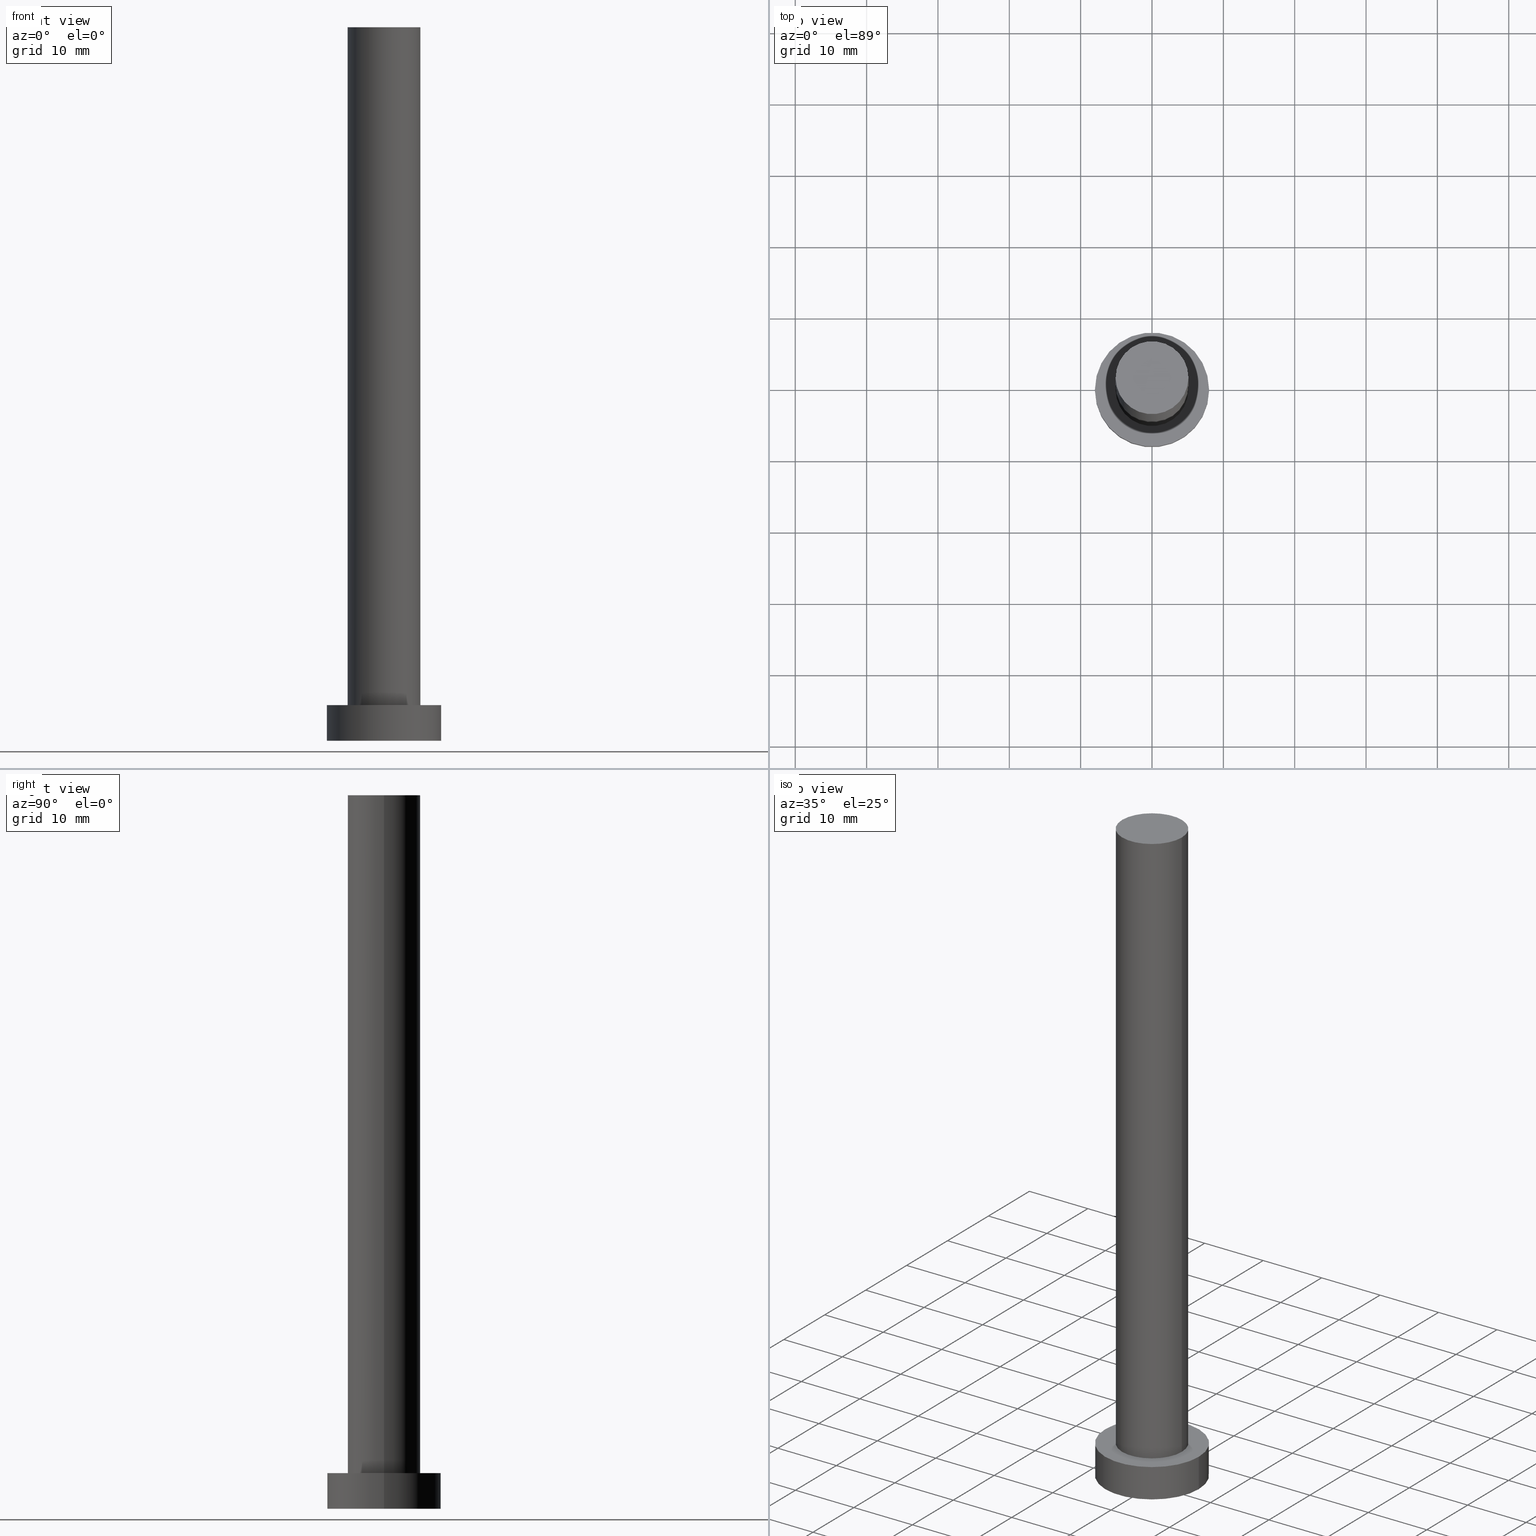
[diagram: canonical four-view strip — front | top / right | iso, engineering-drawing reading convention]
A machine part, canonical four-view strip (front | top / right | iso — engineering-drawing reading convention). The complete STEP part file that produces these views, byte-faithful:
ISO-10303-21;
HEADER;
FILE_DESCRIPTION (( 'STEP AP203' ),
    '1' );
FILE_NAME ('03d8.STEP',
    '2023-02-13T13:16:33',
    ( '' ),
    ( '' ),
    'SwSTEP 2.0',
    'SolidWorks 2019',
    '' );
FILE_SCHEMA (( 'CONFIG_CONTROL_DESIGN' ));
ENDSEC;

DATA;
#1 = DIRECTION ( 'NONE',  ( 0.000000000000000000, 0.000000000000000000, 1.000000000000000000 ) ) ;
#2 = ORIENTED_EDGE ( 'NONE', *, *, #214, .T. ) ;
#3 = EDGE_CURVE ( 'NONE', #112, #210, #176, .T. ) ;
#4 = PERSON_AND_ORGANIZATION ( #174, #10 ) ;
#5 = PERSON_AND_ORGANIZATION ( #174, #10 ) ;
#6 = AXIS2_PLACEMENT_3D ( 'NONE', #122, #121, #216 ) ;
#7 = PERSON_AND_ORGANIZATION_ROLE ( 'design_supplier' ) ;
#8 = VERTEX_POINT ( 'NONE', #230 ) ;
#9 = DIRECTION ( 'NONE',  ( 1.000000000000000000, 0.000000000000000000, 0.000000000000000000 ) ) ;
#10 = ORGANIZATION ( 'NEUR�EN�', 'NEUR�EN�', '' ) ;
#11 = CARTESIAN_POINT ( 'NONE',  ( 0.000000000000000000, 0.000000000000000000, 5.000000000000000000 ) ) ;
#12 = DIRECTION ( 'NONE',  ( -1.000000000000000000, 0.000000000000000000, 0.000000000000000000 ) ) ;
#13 = AXIS2_PLACEMENT_3D ( 'NONE', #20, #198, #239 ) ;
#14 = VECTOR ( 'NONE', #78, 1000.000000000000000 ) ;
#15 = DIRECTION ( 'NONE',  ( -0.000000000000000000, -0.000000000000000000, -1.000000000000000000 ) ) ;
#16 = ADVANCED_FACE ( 'NONE', ( #192 ), #173, .T. ) ;
#17 = CARTESIAN_POINT ( 'NONE',  ( 0.000000000000000000, 0.000000000000000000, 5.000000000000000000 ) ) ;
#18 = PLANE ( 'NONE',  #235 ) ;
#19 = CC_DESIGN_DATE_AND_TIME_ASSIGNMENT ( #185, #148, ( #101 ) ) ;
#20 = CARTESIAN_POINT ( 'NONE',  ( 0.000000000000000000, 0.000000000000000000, 5.000000000000000000 ) ) ;
#21 = VECTOR ( 'NONE', #15, 1000.000000000000000 ) ;
#22 = DIRECTION ( 'NONE',  ( -0.000000000000000000, -0.000000000000000000, -1.000000000000000000 ) ) ;
#23 = PERSON_AND_ORGANIZATION ( #174, #10 ) ;
#24 = ORIENTED_EDGE ( 'NONE', *, *, #105, .F. ) ;
#25 = AXIS2_PLACEMENT_3D ( 'NONE', #11, #249, #94 ) ;
#26 = CARTESIAN_POINT ( 'NONE',  ( 0.000000000000000000, 0.000000000000000000, 0.000000000000000000 ) ) ;
#27 = PERSON_AND_ORGANIZATION_ROLE ( 'creator' ) ;
#28 = ORIENTED_EDGE ( 'NONE', *, *, #73, .F. ) ;
#29 = DIRECTION ( 'NONE',  ( 1.000000000000000000, 0.000000000000000000, 0.000000000000000000 ) ) ;
#30 = AXIS2_PLACEMENT_3D ( 'NONE', #204, #22, #236 ) ;
#31 = VERTEX_POINT ( 'NONE', #193 ) ;
#32 = ORIENTED_EDGE ( 'NONE', *, *, #75, .T. ) ;
#33 = ORIENTED_EDGE ( 'NONE', *, *, #113, .F. ) ;
#34 = ADVANCED_BREP_SHAPE_REPRESENTATION ( '03d8', ( #143, #145 ), #126 ) ;
#35 = APPROVAL ( #168, 'NEUR�EN�' ) ;
#36 = EDGE_LOOP ( 'NONE', ( #248, #166, #247, #28 ) ) ;
#37 = EDGE_CURVE ( 'NONE', #171, #8, #59, .T. ) ;
#38 = DIRECTION ( 'NONE',  ( 0.000000000000000000, 0.000000000000000000, 1.000000000000000000 ) ) ;
#39 = LOCAL_TIME ( 14, 16, 33.00000000000000000, #169 ) ;
#40 = CARTESIAN_POINT ( 'NONE',  ( 8.000000000000000000, 9.797174393178825657E-16, 5.000000000000000000 ) ) ;
#41 = CYLINDRICAL_SURFACE ( 'NONE', #6, 5.099999999999999645 ) ;
#42 = CARTESIAN_POINT ( 'NONE',  ( -5.099999999999999645, 0.000000000000000000, 100.0000000000000000 ) ) ;
#43 = DIRECTION ( 'NONE',  ( 0.000000000000000000, 0.000000000000000000, 1.000000000000000000 ) ) ;
#44 =( NAMED_UNIT ( * ) PLANE_ANGLE_UNIT ( ) SI_UNIT ( $, .RADIAN. ) );
#45 = PERSON_AND_ORGANIZATION ( #174, #10 ) ;
#46 = APPLICATION_PROTOCOL_DEFINITION ( 'international standard', 'config_control_design', 1994, #220 ) ;
#47 = ORIENTED_EDGE ( 'NONE', *, *, #73, .T. ) ;
#48 = CC_DESIGN_PERSON_AND_ORGANIZATION_ASSIGNMENT ( #130, #106, ( #194 ) ) ;
#49 = APPROVAL_DATE_TIME ( #207, #95 ) ;
#50 = ORIENTED_EDGE ( 'NONE', *, *, #60, .T. ) ;
#51 = AXIS2_PLACEMENT_3D ( 'NONE', #134, #117, #12 ) ;
#52 = ORIENTED_EDGE ( 'NONE', *, *, #180, .F. ) ;
#53 = AXIS2_PLACEMENT_3D ( 'NONE', #234, #162, #119 ) ;
#54 = CARTESIAN_POINT ( 'NONE',  ( 5.099999999999999645, 6.245698675651500839E-16, 100.0000000000000000 ) ) ;
#55 = CARTESIAN_POINT ( 'NONE',  ( 0.000000000000000000, 0.000000000000000000, 0.000000000000000000 ) ) ;
#56 = UNCERTAINTY_MEASURE_WITH_UNIT (LENGTH_MEASURE( 1.000000000000000082E-05 ), #103, 'distance_accuracy_value', 'NONE');
#57 = FACE_OUTER_BOUND ( 'NONE', #228, .T. ) ;
#58 = DIRECTION ( 'NONE',  ( 1.000000000000000000, 0.000000000000000000, -0.000000000000000000 ) ) ;
#59 = CIRCLE ( 'NONE', #25, 5.099999999999999645 ) ;
#60 = EDGE_CURVE ( 'NONE', #243, #31, #156, .T. ) ;
#61 = COORDINATED_UNIVERSAL_TIME_OFFSET ( 1, 0, .AHEAD. ) ;
#62 = CALENDAR_DATE ( 2023, 13, 2 ) ;
#63 = VERTEX_POINT ( 'NONE', #99 ) ;
#64 = DATE_TIME_ROLE ( 'classification_date' ) ;
#65 = LOCAL_TIME ( 14, 16, 33.00000000000000000, #61 ) ;
#66 = ORIENTED_EDGE ( 'NONE', *, *, #37, .F. ) ;
#67 = CIRCLE ( 'NONE', #200, 5.099999999999999645 ) ;
#68 = CALENDAR_DATE ( 2023, 13, 2 ) ;
#69 = ORIENTED_EDGE ( 'NONE', *, *, #105, .T. ) ;
#70 = CARTESIAN_POINT ( 'NONE',  ( 0.000000000000000000, 0.000000000000000000, 5.000000000000000000 ) ) ;
#71 = DESIGN_CONTEXT ( 'detailed design', #96, 'design' ) ;
#72 = AXIS2_PLACEMENT_3D ( 'NONE', #55, #178, #124 ) ;
#73 = EDGE_CURVE ( 'NONE', #210, #8, #97, .T. ) ;
#74 = APPROVAL_DATE_TIME ( #152, #219 ) ;
#75 = EDGE_CURVE ( 'NONE', #8, #171, #217, .T. ) ;
#76 = LOCAL_TIME ( 14, 16, 33.00000000000000000, #241 ) ;
#77 = CIRCLE ( 'NONE', #92, 8.000000000000000000 ) ;
#78 = DIRECTION ( 'NONE',  ( -0.000000000000000000, -0.000000000000000000, -1.000000000000000000 ) ) ;
#79 = FACE_BOUND ( 'NONE', #170, .T. ) ;
#80 = DIRECTION ( 'NONE',  ( -0.000000000000000000, -0.000000000000000000, -1.000000000000000000 ) ) ;
#81 = CC_DESIGN_SECURITY_CLASSIFICATION ( #138, ( #194 ) ) ;
#82 = DIRECTION ( 'NONE',  ( -1.000000000000000000, 0.000000000000000000, 0.000000000000000000 ) ) ;
#83 = FACE_OUTER_BOUND ( 'NONE', #90, .T. ) ;
#84 = EDGE_CURVE ( 'NONE', #210, #112, #67, .T. ) ;
#85 = DIRECTION ( 'NONE',  ( -0.000000000000000000, -0.000000000000000000, -1.000000000000000000 ) ) ;
#86 = LOCAL_TIME ( 14, 16, 33.00000000000000000, #211 ) ;
#87 = PERSON_AND_ORGANIZATION_ROLE ( 'classification_officer' ) ;
#88 = ORIENTED_EDGE ( 'NONE', *, *, #84, .F. ) ;
#89 = CALENDAR_DATE ( 2023, 13, 2 ) ;
#90 = EDGE_LOOP ( 'NONE', ( #224, #129 ) ) ;
#91 = CIRCLE ( 'NONE', #132, 8.000000000000000000 ) ;
#92 = AXIS2_PLACEMENT_3D ( 'NONE', #17, #43, #218 ) ;
#93 = ORIENTED_EDGE ( 'NONE', *, *, #201, .T. ) ;
#94 = DIRECTION ( 'NONE',  ( 1.000000000000000000, 0.000000000000000000, 0.000000000000000000 ) ) ;
#95 = APPROVAL ( #109, 'NEUR�EN�' ) ;
#96 = APPLICATION_CONTEXT ( 'configuration controlled 3d designs of mechanical parts and assemblies' ) ;
#97 = LINE ( 'NONE', #177, #14 ) ;
#98 = AXIS2_PLACEMENT_3D ( 'NONE', #164, #158, #82 ) ;
#99 = CARTESIAN_POINT ( 'NONE',  ( 8.000000000000000000, 9.797174393178825657E-16, 0.000000000000000000 ) ) ;
#100 = FACE_OUTER_BOUND ( 'NONE', #153, .T. ) ;
#101 = PRODUCT_DEFINITION ( 'NEZN�M�', '', #194, #71 ) ;
#102 = CYLINDRICAL_SURFACE ( 'NONE', #98, 5.099999999999999645 ) ;
#103 =( LENGTH_UNIT ( ) NAMED_UNIT ( * ) SI_UNIT ( .MILLI., .METRE. ) );
#104 = LINE ( 'NONE', #54, #199 ) ;
#105 = EDGE_CURVE ( 'NONE', #243, #189, #77, .T. ) ;
#106 = PERSON_AND_ORGANIZATION_ROLE ( 'creator' ) ;
#107 = MECHANICAL_CONTEXT ( 'NONE', #220, 'mechanical' ) ;
#108 = EDGE_CURVE ( 'NONE', #189, #63, #253, .T. ) ;
#109 = APPROVAL_STATUS ( 'not_yet_approved' ) ;
#110 = ORIENTED_EDGE ( 'NONE', *, *, #60, .F. ) ;
#111 = LOCAL_TIME ( 14, 16, 33.00000000000000000, #183 ) ;
#112 = VERTEX_POINT ( 'NONE', #123 ) ;
#113 = EDGE_CURVE ( 'NONE', #31, #63, #118, .T. ) ;
#114 = PRODUCT_DEFINITION_SHAPE ( 'NONE', 'NONE',  #101 ) ;
#115 = DIRECTION ( 'NONE',  ( 1.000000000000000000, 0.000000000000000000, 0.000000000000000000 ) ) ;
#116 = ORIENTED_EDGE ( 'NONE', *, *, #214, .F. ) ;
#117 = DIRECTION ( 'NONE',  ( -0.000000000000000000, -0.000000000000000000, -1.000000000000000000 ) ) ;
#118 = CIRCLE ( 'NONE', #72, 8.000000000000000000 ) ;
#119 = DIRECTION ( 'NONE',  ( 1.000000000000000000, 0.000000000000000000, -0.000000000000000000 ) ) ;
#120 = CC_DESIGN_PERSON_AND_ORGANIZATION_ASSIGNMENT ( #186, #87, ( #138 ) ) ;
#121 = DIRECTION ( 'NONE',  ( -0.000000000000000000, -0.000000000000000000, -1.000000000000000000 ) ) ;
#122 = CARTESIAN_POINT ( 'NONE',  ( 0.000000000000000000, 0.000000000000000000, 100.0000000000000000 ) ) ;
#123 = CARTESIAN_POINT ( 'NONE',  ( 5.099999999999999645, 6.245698675651500839E-16, 100.0000000000000000 ) ) ;
#124 = DIRECTION ( 'NONE',  ( 1.000000000000000000, 0.000000000000000000, 0.000000000000000000 ) ) ;
#125 = DATE_AND_TIME ( #209, #76 ) ;
#126 =( GEOMETRIC_REPRESENTATION_CONTEXT ( 3 ) GLOBAL_UNCERTAINTY_ASSIGNED_CONTEXT ( ( #56 ) ) GLOBAL_UNIT_ASSIGNED_CONTEXT ( ( #103, #44, #223 ) ) REPRESENTATION_CONTEXT ( 'NONE', 'WORKASPACE' ) );
#127 = APPROVAL_DATE_TIME ( #125, #35 ) ;
#128 = PERSON_AND_ORGANIZATION_ROLE ( 'design_owner' ) ;
#129 = ORIENTED_EDGE ( 'NONE', *, *, #3, .T. ) ;
#130 = PERSON_AND_ORGANIZATION ( #174, #10 ) ;
#131 = ORIENTED_EDGE ( 'NONE', *, *, #113, .T. ) ;
#132 = AXIS2_PLACEMENT_3D ( 'NONE', #182, #140, #196 ) ;
#133 = EDGE_LOOP ( 'NONE', ( #116, #227, #93, #110 ) ) ;
#134 = CARTESIAN_POINT ( 'NONE',  ( 0.000000000000000000, 0.000000000000000000, 5.000000000000000000 ) ) ;
#135 = ORIENTED_EDGE ( 'NONE', *, *, #108, .F. ) ;
#136 = PERSON_AND_ORGANIZATION ( #174, #10 ) ;
#137 = PRODUCT_RELATED_PRODUCT_CATEGORY ( 'detail', '', ( #150 ) ) ;
#138 = SECURITY_CLASSIFICATION ( '', '', #165 ) ;
#139 = ADVANCED_FACE ( 'NONE', ( #100 ), #102, .T. ) ;
#140 = DIRECTION ( 'NONE',  ( 0.000000000000000000, 0.000000000000000000, 1.000000000000000000 ) ) ;
#141 = DIRECTION ( 'NONE',  ( 1.000000000000000000, 0.000000000000000000, 0.000000000000000000 ) ) ;
#142 = FACE_OUTER_BOUND ( 'NONE', #154, .T. ) ;
#143 = MANIFOLD_SOLID_BREP ( 'P�idat vysunut�m3', #151 ) ;
#144 = CARTESIAN_POINT ( 'NONE',  ( 0.000000000000000000, 0.000000000000000000, 0.000000000000000000 ) ) ;
#145 = AXIS2_PLACEMENT_3D ( 'NONE', #26, #1, #29 ) ;
#146 = ADVANCED_FACE ( 'NONE', ( #79, #142 ), #233, .T. ) ;
#147 = AXIS2_PLACEMENT_3D ( 'NONE', #155, #38, #115 ) ;
#148 = DATE_TIME_ROLE ( 'creation_date' ) ;
#149 = APPROVAL_ROLE ( '' ) ;
#150 = PRODUCT ( '03d8', '03d8', '', ( #107 ) ) ;
#151 = CLOSED_SHELL ( 'NONE', ( #184, #16, #157, #146, #237, #139, #215 ) ) ;
#152 = DATE_AND_TIME ( #68, #39 ) ;
#153 = EDGE_LOOP ( 'NONE', ( #52, #88, #47, #32 ) ) ;
#154 = EDGE_LOOP ( 'NONE', ( #69, #2 ) ) ;
#155 = CARTESIAN_POINT ( 'NONE',  ( 0.000000000000000000, 0.000000000000000000, 100.0000000000000000 ) ) ;
#156 = LINE ( 'NONE', #172, #21 ) ;
#157 = ADVANCED_FACE ( 'NONE', ( #181 ), #252, .T. ) ;
#158 = DIRECTION ( 'NONE',  ( -0.000000000000000000, -0.000000000000000000, -1.000000000000000000 ) ) ;
#159 = FACE_OUTER_BOUND ( 'NONE', #36, .T. ) ;
#160 = CC_DESIGN_APPROVAL ( #35, ( #101 ) ) ;
#161 = CC_DESIGN_PERSON_AND_ORGANIZATION_ASSIGNMENT ( #240, #27, ( #101 ) ) ;
#162 = DIRECTION ( 'NONE',  ( 0.000000000000000000, 0.000000000000000000, 1.000000000000000000 ) ) ;
#163 = DIRECTION ( 'NONE',  ( 0.000000000000000000, 0.000000000000000000, 1.000000000000000000 ) ) ;
#164 = CARTESIAN_POINT ( 'NONE',  ( 0.000000000000000000, 0.000000000000000000, 100.0000000000000000 ) ) ;
#165 = SECURITY_CLASSIFICATION_LEVEL ( 'unclassified' ) ;
#166 = ORIENTED_EDGE ( 'NONE', *, *, #180, .T. ) ;
#167 = CALENDAR_DATE ( 2023, 13, 2 ) ;
#168 = APPROVAL_STATUS ( 'not_yet_approved' ) ;
#169 = COORDINATED_UNIVERSAL_TIME_OFFSET ( 1, 0, .AHEAD. ) ;
#170 = EDGE_LOOP ( 'NONE', ( #213, #66 ) ) ;
#171 = VERTEX_POINT ( 'NONE', #221 ) ;
#172 = CARTESIAN_POINT ( 'NONE',  ( -8.000000000000000000, 0.000000000000000000, 5.000000000000000000 ) ) ;
#173 = CYLINDRICAL_SURFACE ( 'NONE', #51, 8.000000000000000000 ) ;
#174 = PERSON ( 'NEUR�EN�', 'NEUR�EN�', 'NEUR�EN�', ('NEUR�EN�'), ('NEUR�EN�'), ('NEUR�EN�') ) ;
#175 = APPROVAL_PERSON_ORGANIZATION ( #136, #35, #205 ) ;
#176 = CIRCLE ( 'NONE', #147, 5.099999999999999645 ) ;
#177 = CARTESIAN_POINT ( 'NONE',  ( -5.099999999999999645, 0.000000000000000000, 100.0000000000000000 ) ) ;
#178 = DIRECTION ( 'NONE',  ( 0.000000000000000000, 0.000000000000000000, 1.000000000000000000 ) ) ;
#179 = DIRECTION ( 'NONE',  ( 0.000000000000000000, 0.000000000000000000, 1.000000000000000000 ) ) ;
#180 = EDGE_CURVE ( 'NONE', #112, #171, #104, .T. ) ;
#181 = FACE_OUTER_BOUND ( 'NONE', #187, .T. ) ;
#182 = CARTESIAN_POINT ( 'NONE',  ( 0.000000000000000000, 0.000000000000000000, 0.000000000000000000 ) ) ;
#183 = COORDINATED_UNIVERSAL_TIME_OFFSET ( 1, 0, .AHEAD. ) ;
#184 = ADVANCED_FACE ( 'NONE', ( #159 ), #41, .T. ) ;
#185 = DATE_AND_TIME ( #167, #111 ) ;
#186 = PERSON_AND_ORGANIZATION ( #174, #10 ) ;
#187 = EDGE_LOOP ( 'NONE', ( #135, #24, #50, #131 ) ) ;
#188 = CC_DESIGN_APPROVAL ( #95, ( #194 ) ) ;
#189 = VERTEX_POINT ( 'NONE', #40 ) ;
#190 = DIRECTION ( 'NONE',  ( 0.000000000000000000, 0.000000000000000000, 1.000000000000000000 ) ) ;
#191 = CC_DESIGN_PERSON_AND_ORGANIZATION_ASSIGNMENT ( #45, #128, ( #150 ) ) ;
#192 = FACE_OUTER_BOUND ( 'NONE', #133, .T. ) ;
#193 = CARTESIAN_POINT ( 'NONE',  ( -8.000000000000000000, 0.000000000000000000, 0.000000000000000000 ) ) ;
#194 = PRODUCT_DEFINITION_FORMATION_WITH_SPECIFIED_SOURCE ( 'LIBOVOLN�', '', #150, .NOT_KNOWN. ) ;
#195 = CARTESIAN_POINT ( 'NONE',  ( 8.000000000000000000, 9.797174393178825657E-16, 5.000000000000000000 ) ) ;
#196 = DIRECTION ( 'NONE',  ( 1.000000000000000000, 0.000000000000000000, 0.000000000000000000 ) ) ;
#197 = CC_DESIGN_DATE_AND_TIME_ASSIGNMENT ( #242, #64, ( #138 ) ) ;
#198 = DIRECTION ( 'NONE',  ( 0.000000000000000000, 0.000000000000000000, 1.000000000000000000 ) ) ;
#199 = VECTOR ( 'NONE', #80, 1000.000000000000000 ) ;
#200 = AXIS2_PLACEMENT_3D ( 'NONE', #231, #179, #141 ) ;
#201 = EDGE_CURVE ( 'NONE', #63, #31, #91, .T. ) ;
#202 = DIRECTION ( 'NONE',  ( 0.000000000000000000, 0.000000000000000000, 1.000000000000000000 ) ) ;
#203 = CC_DESIGN_PERSON_AND_ORGANIZATION_ASSIGNMENT ( #4, #7, ( #194 ) ) ;
#204 = CARTESIAN_POINT ( 'NONE',  ( 0.000000000000000000, 0.000000000000000000, 5.000000000000000000 ) ) ;
#205 = APPROVAL_ROLE ( '' ) ;
#206 = AXIS2_PLACEMENT_3D ( 'NONE', #222, #163, #238 ) ;
#207 = DATE_AND_TIME ( #62, #65 ) ;
#208 = ORIENTED_EDGE ( 'NONE', *, *, #201, .F. ) ;
#209 = CALENDAR_DATE ( 2023, 13, 2 ) ;
#210 = VERTEX_POINT ( 'NONE', #42 ) ;
#211 = COORDINATED_UNIVERSAL_TIME_OFFSET ( 1, 0, .AHEAD. ) ;
#212 = CIRCLE ( 'NONE', #13, 8.000000000000000000 ) ;
#213 = ORIENTED_EDGE ( 'NONE', *, *, #75, .F. ) ;
#214 = EDGE_CURVE ( 'NONE', #189, #243, #212, .T. ) ;
#215 = ADVANCED_FACE ( 'NONE', ( #83 ), #254, .T. ) ;
#216 = DIRECTION ( 'NONE',  ( -1.000000000000000000, 0.000000000000000000, 0.000000000000000000 ) ) ;
#217 = CIRCLE ( 'NONE', #245, 5.099999999999999645 ) ;
#218 = DIRECTION ( 'NONE',  ( 1.000000000000000000, 0.000000000000000000, 0.000000000000000000 ) ) ;
#219 = APPROVAL ( #246, 'NEUR�EN�' ) ;
#220 = APPLICATION_CONTEXT ( 'configuration controlled 3d designs of mechanical parts and assemblies' ) ;
#221 = CARTESIAN_POINT ( 'NONE',  ( 5.099999999999999645, 6.245698675651500839E-16, 5.000000000000000000 ) ) ;
#222 = CARTESIAN_POINT ( 'NONE',  ( 0.000000000000000000, 0.000000000000000000, 100.0000000000000000 ) ) ;
#223 =( NAMED_UNIT ( * ) SI_UNIT ( $, .STERADIAN. ) SOLID_ANGLE_UNIT ( ) );
#224 = ORIENTED_EDGE ( 'NONE', *, *, #84, .T. ) ;
#225 = APPROVAL_ROLE ( '' ) ;
#226 = APPLICATION_PROTOCOL_DEFINITION ( 'international standard', 'config_control_design', 1994, #96 ) ;
#227 = ORIENTED_EDGE ( 'NONE', *, *, #108, .T. ) ;
#228 = EDGE_LOOP ( 'NONE', ( #33, #208 ) ) ;
#229 = VECTOR ( 'NONE', #85, 1000.000000000000000 ) ;
#230 = CARTESIAN_POINT ( 'NONE',  ( -5.099999999999999645, 0.000000000000000000, 5.000000000000000000 ) ) ;
#231 = CARTESIAN_POINT ( 'NONE',  ( 0.000000000000000000, 0.000000000000000000, 100.0000000000000000 ) ) ;
#232 = SHAPE_DEFINITION_REPRESENTATION ( #114, #34 ) ;
#233 = PLANE ( 'NONE',  #53 ) ;
#234 = CARTESIAN_POINT ( 'NONE',  ( 0.000000000000000000, 0.000000000000000000, 5.000000000000000000 ) ) ;
#235 = AXIS2_PLACEMENT_3D ( 'NONE', #144, #202, #58 ) ;
#236 = DIRECTION ( 'NONE',  ( -1.000000000000000000, 0.000000000000000000, 0.000000000000000000 ) ) ;
#237 = ADVANCED_FACE ( 'NONE', ( #57 ), #18, .F. ) ;
#238 = DIRECTION ( 'NONE',  ( 1.000000000000000000, 0.000000000000000000, -0.000000000000000000 ) ) ;
#239 = DIRECTION ( 'NONE',  ( 1.000000000000000000, 0.000000000000000000, 0.000000000000000000 ) ) ;
#240 = PERSON_AND_ORGANIZATION ( #174, #10 ) ;
#241 = COORDINATED_UNIVERSAL_TIME_OFFSET ( 1, 0, .AHEAD. ) ;
#242 = DATE_AND_TIME ( #89, #86 ) ;
#243 = VERTEX_POINT ( 'NONE', #251 ) ;
#244 = APPROVAL_PERSON_ORGANIZATION ( #23, #95, #225 ) ;
#245 = AXIS2_PLACEMENT_3D ( 'NONE', #70, #190, #9 ) ;
#246 = APPROVAL_STATUS ( 'not_yet_approved' ) ;
#247 = ORIENTED_EDGE ( 'NONE', *, *, #37, .T. ) ;
#248 = ORIENTED_EDGE ( 'NONE', *, *, #3, .F. ) ;
#249 = DIRECTION ( 'NONE',  ( 0.000000000000000000, 0.000000000000000000, 1.000000000000000000 ) ) ;
#250 = CC_DESIGN_APPROVAL ( #219, ( #138 ) ) ;
#251 = CARTESIAN_POINT ( 'NONE',  ( -8.000000000000000000, 0.000000000000000000, 5.000000000000000000 ) ) ;
#252 = CYLINDRICAL_SURFACE ( 'NONE', #30, 8.000000000000000000 ) ;
#253 = LINE ( 'NONE', #195, #229 ) ;
#254 = PLANE ( 'NONE',  #206 ) ;
#255 = APPROVAL_PERSON_ORGANIZATION ( #5, #219, #149 ) ;
ENDSEC;
END-ISO-10303-21;
